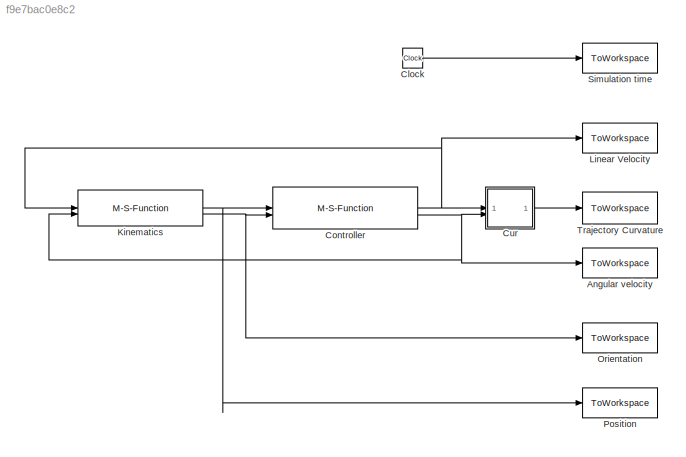
MODEL slx_f9e7bac0e8c2
KIND model
CONFIG AbsTol = auto
CONFIG EnableMultiTasking = off
CONFIG FixedStep = 0.1
CONFIG MaxStep = 0.1
CONFIG MinStep = auto
CONFIG RelTol = 1e-3
CONFIG SampleTimeConstraint = Unconstrained
CONFIG SolverName = VariableStepAuto
CONFIG StartTime = 0.0
CONFIG StopTime = 500
BLOCK [ToWorkspace] Angular velocity
  MaxDataPoints = inf
  SampleTime = -1
  VariableName = cmd_w
BLOCK [Clock] Clock
BLOCK [M-S-Function] Controller
  FunctionName = Controller_DVF
  Parameters = pd,theta_d
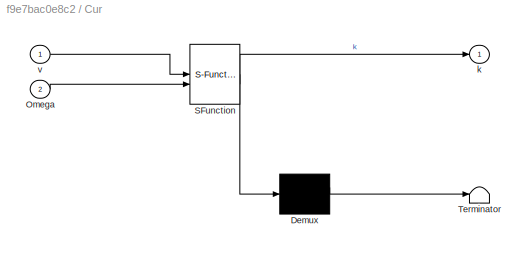
BLOCK [SubSystem] Cur
  ErrorFcn = Stateflow.Translate.translate
  PermitHierarchicalResolution = ExplicitOnly
  SFBlockType = MATLAB Function
  ShowPortLabels = none
  TreatAsAtomicUnit = on
BLOCK [Demux] Cur/ Demux 
  Outputs = 1
BLOCK [S-Function] Cur/ SFunction 
  EnableBusSupport = on
  FunctionName = sf_sfun
  PortCounts = [2 2]
  SFcnIsStateOwnerBlock = off
  SFunctionDeploymentMode = off
  Tag = Stateflow S-Function 2
BLOCK [Terminator] Cur/ Terminator 
BLOCK [Inport] Cur/Omega
  Port = 2
BLOCK [Outport] Cur/k
BLOCK [Inport] Cur/v
BLOCK [M-S-Function] Kinematics
  FunctionName = se2_kinematics_Unicycle
  Parameters = p0,theta0
BLOCK [ToWorkspace] Linear Velocity
  MaxDataPoints = inf
  SampleTime = -1
  VariableName = cmd_vx
BLOCK [ToWorkspace] Orientation
  MaxDataPoints = inf
  SampleTime = -1
  VariableName = theta
BLOCK [ToWorkspace] Position
  MaxDataPoints = inf
  SampleTime = -1
  VariableName = p
BLOCK [ToWorkspace] Simulation time
  MaxDataPoints = inf
  SampleTime = -1
  VariableName = timeout
BLOCK [ToWorkspace] Trajectory Curvature
  MaxDataPoints = inf
  SampleTime = -1
  VariableName = cmd_k
LINE Clock:1 -> Simulation time:1
NET Controller:1 -> Cur:1, Kinematics:1, Linear Velocity:1
NET Controller:2 -> Angular velocity:1, Cur:2, Kinematics:2
LINE Cur:1 -> Trajectory Curvature:1
NET Kinematics:1 -> Controller:1, Position:1
NET Kinematics:2 -> Controller:2, Orientation:1
note: NET lines group one-source signal fan-out (src -> all destinations, sorted); 1:1 wires keep LINE
CHART Cur states=1 transitions=1
  STATE_LABEL 'eML_blk_kernel()'
  STATE_LABEL 'SCRIPT:\nfunction k = k(v,Omega)\nk = norm(Omega)/norm(v);'
CHART  states=0 transitions=0
